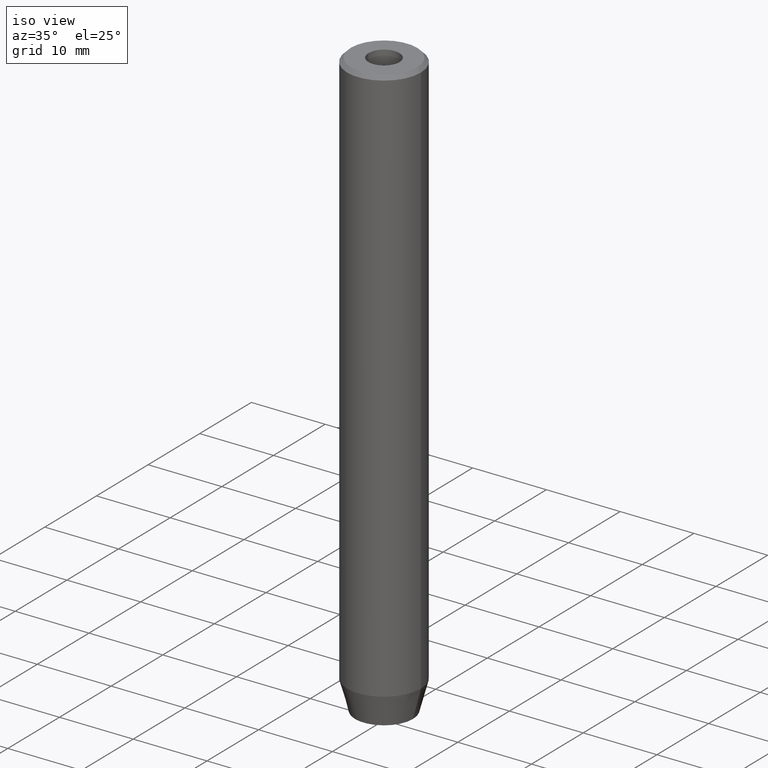
[diagram: clean part render]
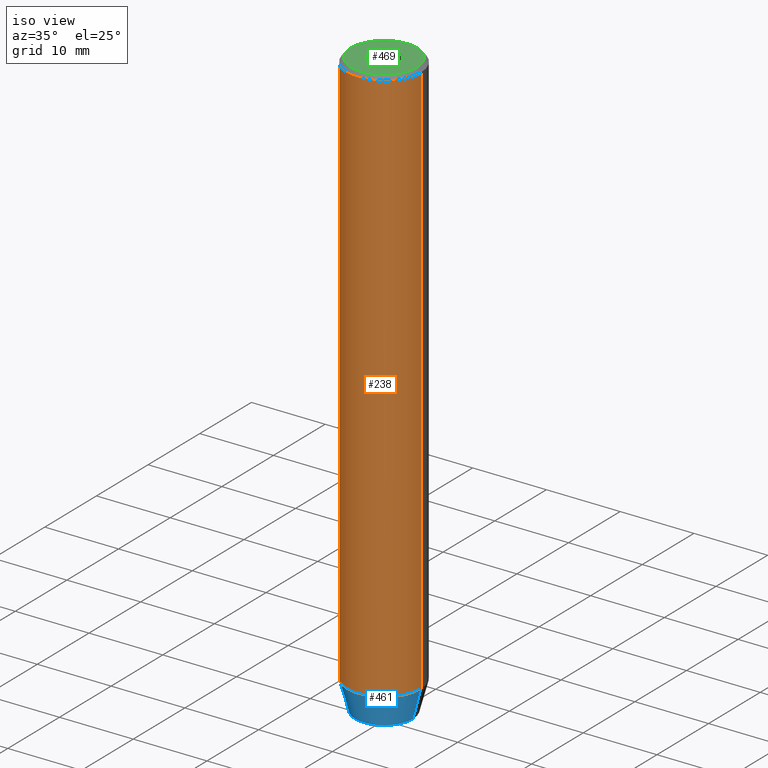
[diagram: same view with three faces highlighted in distinct colors, each labeled with its STEP entity id]
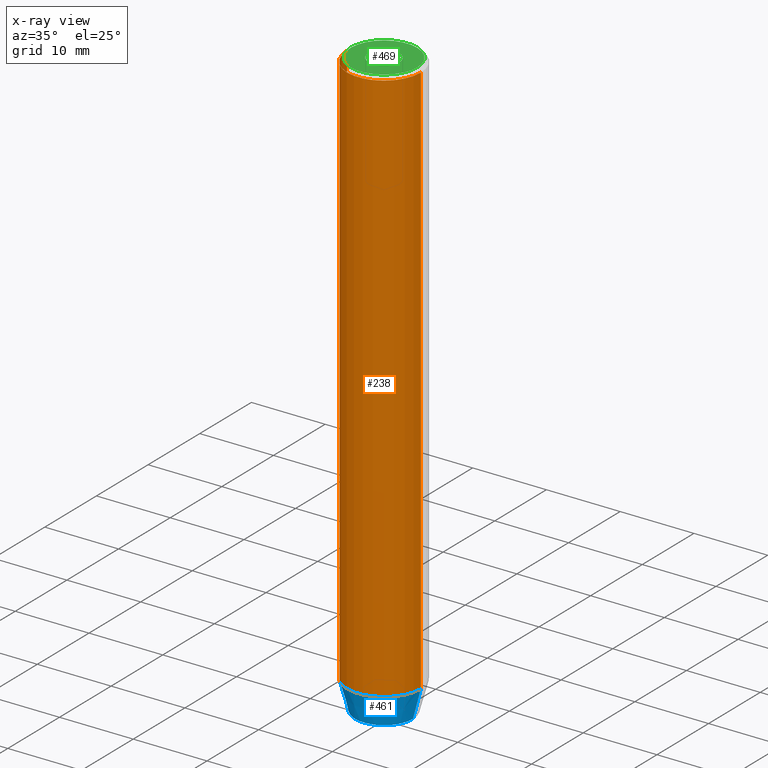
[diagram: x-ray of the same camera — body ghosted, the three highlighted faces saturated]
A machine part, iso view with three faces highlighted in distinct colors.
The next image is the same camera in x-ray (body ghosted, the three faces saturated) — at least one of them is partly hidden behind the body in this view.
Their STEP definitions:

[orange] entity #238 — the highlighted cylindrical surface (partial cylindrical patch) has radius 5 mm, axis along (-0, -0, 1).
#20 = CYLINDRICAL_SURFACE ( 'NONE', #201, 5.000000000000000000 ) ;
#26 = CARTESIAN_POINT ( 'NONE',  ( 5.000000000000000000, 0.000000000000000000, 0.000000000000000000 ) ) ;
#31 = LINE ( 'NONE', #26, #56 ) ;
#47 = DIRECTION ( 'NONE',  ( -0.000000000000000000, -0.000000000000000000, 1.000000000000000000 ) ) ;
#49 = ORIENTED_EDGE ( 'NONE', *, *, #543, .F. ) ;
#52 = VERTEX_POINT ( 'NONE', #464 ) ;
#56 = VECTOR ( 'NONE', #262, 1000.000000000000000 ) ;
#57 = LINE ( 'NONE', #365, #117 ) ;
#58 = CARTESIAN_POINT ( 'NONE',  ( 5.000000000000000000, 0.000000000000000000, -0.5000000000000065503 ) ) ;
#64 = ORIENTED_EDGE ( 'NONE', *, *, #355, .T. ) ;
#96 = AXIS2_PLACEMENT_3D ( 'NONE', #241, #47, #270 ) ;
#117 = VECTOR ( 'NONE', #234, 1000.000000000000000 ) ;
#150 = FACE_OUTER_BOUND ( 'NONE', #158, .T. ) ;
#158 = EDGE_LOOP ( 'NONE', ( #49, #570, #561, #64 ) ) ;
#168 = VERTEX_POINT ( 'NONE', #58 ) ;
#173 = DIRECTION ( 'NONE',  ( 1.000000000000000000, 0.000000000000000000, 0.000000000000000000 ) ) ;
#201 = AXIS2_PLACEMENT_3D ( 'NONE', #204, #385, #326 ) ;
#204 = CARTESIAN_POINT ( 'NONE',  ( 0.000000000000000000, 0.000000000000000000, 0.000000000000000000 ) ) ;
#219 = AXIS2_PLACEMENT_3D ( 'NONE', #254, #444, #173 ) ;
#234 = DIRECTION ( 'NONE',  ( -0.000000000000000000, -0.000000000000000000, 1.000000000000000000 ) ) ;
#238 = ADVANCED_FACE ( 'NONE', ( #150 ), #20, .T. ) ;
#241 = CARTESIAN_POINT ( 'NONE',  ( 0.000000000000000000, 0.000000000000000000, -76.00000000000001421 ) ) ;
#254 = CARTESIAN_POINT ( 'NONE',  ( 0.000000000000000000, 0.000000000000000000, -0.5000000000000065503 ) ) ;
#257 = CIRCLE ( 'NONE', #219, 5.000000000000000000 ) ;
#262 = DIRECTION ( 'NONE',  ( -0.000000000000000000, -0.000000000000000000, 1.000000000000000000 ) ) ;
#270 = DIRECTION ( 'NONE',  ( 1.000000000000000000, 0.000000000000000000, 0.000000000000000000 ) ) ;
#326 = DIRECTION ( 'NONE',  ( 1.000000000000000000, 0.000000000000000000, 0.000000000000000000 ) ) ;
#331 = EDGE_CURVE ( 'NONE', #501, #168, #31, .T. ) ;
#351 = CIRCLE ( 'NONE', #96, 5.000000000000000000 ) ;
#355 = EDGE_CURVE ( 'NONE', #168, #386, #257, .T. ) ;
#365 = CARTESIAN_POINT ( 'NONE',  ( -5.000000000000000000, 6.123233995736766282E-16, 0.000000000000000000 ) ) ;
#385 = DIRECTION ( 'NONE',  ( -0.000000000000000000, -0.000000000000000000, 1.000000000000000000 ) ) ;
#386 = VERTEX_POINT ( 'NONE', #532 ) ;
#444 = DIRECTION ( 'NONE',  ( 0.000000000000000000, 0.000000000000000000, -1.000000000000000000 ) ) ;
#455 = CARTESIAN_POINT ( 'NONE',  ( 5.000000000000000000, 0.000000000000000000, -76.00000000000001421 ) ) ;
#464 = CARTESIAN_POINT ( 'NONE',  ( -5.000000000000000000, 6.123233995736766282E-16, -76.00000000000001421 ) ) ;
#486 = EDGE_CURVE ( 'NONE', #52, #501, #351, .T. ) ;
#501 = VERTEX_POINT ( 'NONE', #455 ) ;
#532 = CARTESIAN_POINT ( 'NONE',  ( -5.000000000000000000, 6.123233995736766282E-16, -0.5000000000000065503 ) ) ;
#543 = EDGE_CURVE ( 'NONE', #52, #386, #57, .T. ) ;
#561 = ORIENTED_EDGE ( 'NONE', *, *, #331, .T. ) ;
#570 = ORIENTED_EDGE ( 'NONE', *, *, #486, .T. ) ;

[blue] entity #461 — the highlighted conical surface has half-angle 15 deg.
#16 = CIRCLE ( 'NONE', #379, 3.928203230275509661 ) ;
#30 = LINE ( 'NONE', #170, #388 ) ;
#34 = DIRECTION ( 'NONE',  ( -0.000000000000000000, -0.000000000000000000, 1.000000000000000000 ) ) ;
#35 = AXIS2_PLACEMENT_3D ( 'NONE', #413, #313, #551 ) ;
#47 = DIRECTION ( 'NONE',  ( -0.000000000000000000, -0.000000000000000000, 1.000000000000000000 ) ) ;
#52 = VERTEX_POINT ( 'NONE', #464 ) ;
#80 = DIRECTION ( 'NONE',  ( 0.2588190451025205174, 0.000000000000000000, 0.9659258262890684232 ) ) ;
#84 = VERTEX_POINT ( 'NONE', #322 ) ;
#96 = AXIS2_PLACEMENT_3D ( 'NONE', #241, #47, #270 ) ;
#143 = FACE_OUTER_BOUND ( 'NONE', #205, .T. ) ;
#170 = CARTESIAN_POINT ( 'NONE',  ( 5.000000000000000000, 0.000000000000000000, -76.00000000000001421 ) ) ;
#183 = CARTESIAN_POINT ( 'NONE',  ( 3.928203230275509661, 0.000000000000000000, -80.00000000000001421 ) ) ;
#203 = ORIENTED_EDGE ( 'NONE', *, *, #486, .F. ) ;
#205 = EDGE_LOOP ( 'NONE', ( #317, #357, #245, #203 ) ) ;
#226 = CONICAL_SURFACE ( 'NONE', #35, 5.000000000000000000, 0.2617993877991491858 ) ;
#241 = CARTESIAN_POINT ( 'NONE',  ( 0.000000000000000000, 0.000000000000000000, -76.00000000000001421 ) ) ;
#245 = ORIENTED_EDGE ( 'NONE', *, *, #372, .T. ) ;
#252 = LINE ( 'NONE', #481, #583 ) ;
#270 = DIRECTION ( 'NONE',  ( 1.000000000000000000, 0.000000000000000000, 0.000000000000000000 ) ) ;
#296 = CARTESIAN_POINT ( 'NONE',  ( 0.000000000000000000, 0.000000000000000000, -80.00000000000001421 ) ) ;
#313 = DIRECTION ( 'NONE',  ( -0.000000000000000000, -0.000000000000000000, 1.000000000000000000 ) ) ;
#317 = ORIENTED_EDGE ( 'NONE', *, *, #401, .F. ) ;
#322 = CARTESIAN_POINT ( 'NONE',  ( -3.928203230275509661, 5.466947754046981113E-16, -80.00000000000001421 ) ) ;
#345 = DIRECTION ( 'NONE',  ( 1.000000000000000000, 0.000000000000000000, 0.000000000000000000 ) ) ;
#351 = CIRCLE ( 'NONE', #96, 5.000000000000000000 ) ;
#357 = ORIENTED_EDGE ( 'NONE', *, *, #380, .T. ) ;
#372 = EDGE_CURVE ( 'NONE', #542, #501, #30, .T. ) ;
#379 = AXIS2_PLACEMENT_3D ( 'NONE', #296, #34, #345 ) ;
#380 = EDGE_CURVE ( 'NONE', #84, #542, #16, .T. ) ;
#388 = VECTOR ( 'NONE', #80, 1000.000000000000000 ) ;
#401 = EDGE_CURVE ( 'NONE', #84, #52, #252, .T. ) ;
#413 = CARTESIAN_POINT ( 'NONE',  ( 0.000000000000000000, 0.000000000000000000, -76.00000000000001421 ) ) ;
#434 = DIRECTION ( 'NONE',  ( -0.2588190451025205174, 3.169619151431761860E-17, 0.9659258262890684232 ) ) ;
#455 = CARTESIAN_POINT ( 'NONE',  ( 5.000000000000000000, 0.000000000000000000, -76.00000000000001421 ) ) ;
#461 = ADVANCED_FACE ( 'NONE', ( #143 ), #226, .T. ) ;
#464 = CARTESIAN_POINT ( 'NONE',  ( -5.000000000000000000, 6.123233995736766282E-16, -76.00000000000001421 ) ) ;
#481 = CARTESIAN_POINT ( 'NONE',  ( -5.000000000000000000, 6.123233995736766282E-16, -76.00000000000001421 ) ) ;
#486 = EDGE_CURVE ( 'NONE', #52, #501, #351, .T. ) ;
#501 = VERTEX_POINT ( 'NONE', #455 ) ;
#542 = VERTEX_POINT ( 'NONE', #183 ) ;
#551 = DIRECTION ( 'NONE',  ( 1.000000000000000000, 0.000000000000000000, 0.000000000000000000 ) ) ;
#583 = VECTOR ( 'NONE', #434, 1000.000000000000000 ) ;

[green] entity #469 — the highlighted planar face has unit normal (0, -0, 1).
#1 = DIRECTION ( 'NONE',  ( 0.000000000000000000, -0.000000000000000000, 1.000000000000000000 ) ) ;
#3 = CARTESIAN_POINT ( 'NONE',  ( 0.000000000000000000, 0.000000000000000000, 0.000000000000000000 ) ) ;
#25 = EDGE_CURVE ( 'NONE', #33, #136, #429, .T. ) ;
#33 = VERTEX_POINT ( 'NONE', #364 ) ;
#68 = ORIENTED_EDGE ( 'NONE', *, *, #502, .T. ) ;
#85 = VERTEX_POINT ( 'NONE', #457 ) ;
#103 = CARTESIAN_POINT ( 'NONE',  ( 0.000000000000000000, 0.000000000000000000, -1.990051048614449116E-16 ) ) ;
#108 = EDGE_CURVE ( 'NONE', #85, #247, #264, .T. ) ;
#132 = DIRECTION ( 'NONE',  ( -0.000000000000000000, -0.000000000000000000, 1.000000000000000000 ) ) ;
#136 = VERTEX_POINT ( 'NONE', #290 ) ;
#144 = EDGE_CURVE ( 'NONE', #247, #85, #309, .T. ) ;
#148 = EDGE_LOOP ( 'NONE', ( #68, #314 ) ) ;
#155 = DIRECTION ( 'NONE',  ( 1.000000000000000000, 0.000000000000000000, 0.000000000000000000 ) ) ;
#174 = CIRCLE ( 'NONE', #503, 4.499999999999997335 ) ;
#186 = EDGE_LOOP ( 'NONE', ( #584, #516 ) ) ;
#189 = DIRECTION ( 'NONE',  ( 1.000000000000000000, 0.000000000000000000, 0.000000000000000000 ) ) ;
#229 = CARTESIAN_POINT ( 'NONE',  ( 0.000000000000000000, 0.000000000000000000, 0.000000000000000000 ) ) ;
#247 = VERTEX_POINT ( 'NONE', #287 ) ;
#248 = AXIS2_PLACEMENT_3D ( 'NONE', #103, #467, #155 ) ;
#264 = CIRCLE ( 'NONE', #466, 2.099999999999998757 ) ;
#287 = CARTESIAN_POINT ( 'NONE',  ( 2.099999999999998757, 0.000000000000000000, -1.990051048614449116E-16 ) ) ;
#290 = CARTESIAN_POINT ( 'NONE',  ( -4.499999999999997335, 0.000000000000000000, 0.000000000000000000 ) ) ;
#309 = CIRCLE ( 'NONE', #248, 2.099999999999998757 ) ;
#314 = ORIENTED_EDGE ( 'NONE', *, *, #25, .T. ) ;
#319 = DIRECTION ( 'NONE',  ( 1.000000000000000000, 0.000000000000000000, 0.000000000000000000 ) ) ;
#321 = FACE_OUTER_BOUND ( 'NONE', #148, .T. ) ;
#364 = CARTESIAN_POINT ( 'NONE',  ( 4.499999999999997335, 5.817072295949926440E-16, 0.000000000000000000 ) ) ;
#367 = PLANE ( 'NONE',  #558 ) ;
#371 = DIRECTION ( 'NONE',  ( -0.000000000000000000, -0.000000000000000000, 1.000000000000000000 ) ) ;
#429 = CIRCLE ( 'NONE', #498, 4.499999999999997335 ) ;
#453 = CARTESIAN_POINT ( 'NONE',  ( 0.000000000000000000, 0.000000000000000000, -1.990051048614449116E-16 ) ) ;
#457 = CARTESIAN_POINT ( 'NONE',  ( -2.099999999999998757, 2.571758278209439985E-16, -1.990051048614449116E-16 ) ) ;
#460 = DIRECTION ( 'NONE',  ( -0.000000000000000000, -0.000000000000000000, 1.000000000000000000 ) ) ;
#465 = CARTESIAN_POINT ( 'NONE',  ( 0.000000000000000000, 0.000000000000000000, 0.000000000000000000 ) ) ;
#466 = AXIS2_PLACEMENT_3D ( 'NONE', #453, #460, #189 ) ;
#467 = DIRECTION ( 'NONE',  ( -0.000000000000000000, -0.000000000000000000, 1.000000000000000000 ) ) ;
#469 = ADVANCED_FACE ( 'NONE', ( #496, #321 ), #367, .T. ) ;
#470 = DIRECTION ( 'NONE',  ( 1.000000000000000000, 0.000000000000000000, 0.000000000000000000 ) ) ;
#496 = FACE_BOUND ( 'NONE', #186, .T. ) ;
#498 = AXIS2_PLACEMENT_3D ( 'NONE', #3, #132, #319 ) ;
#500 = DIRECTION ( 'NONE',  ( 1.000000000000000000, 0.000000000000000000, 0.000000000000000000 ) ) ;
#502 = EDGE_CURVE ( 'NONE', #136, #33, #174, .T. ) ;
#503 = AXIS2_PLACEMENT_3D ( 'NONE', #229, #371, #500 ) ;
#516 = ORIENTED_EDGE ( 'NONE', *, *, #108, .F. ) ;
#558 = AXIS2_PLACEMENT_3D ( 'NONE', #465, #1, #470 ) ;
#584 = ORIENTED_EDGE ( 'NONE', *, *, #144, .F. ) ;